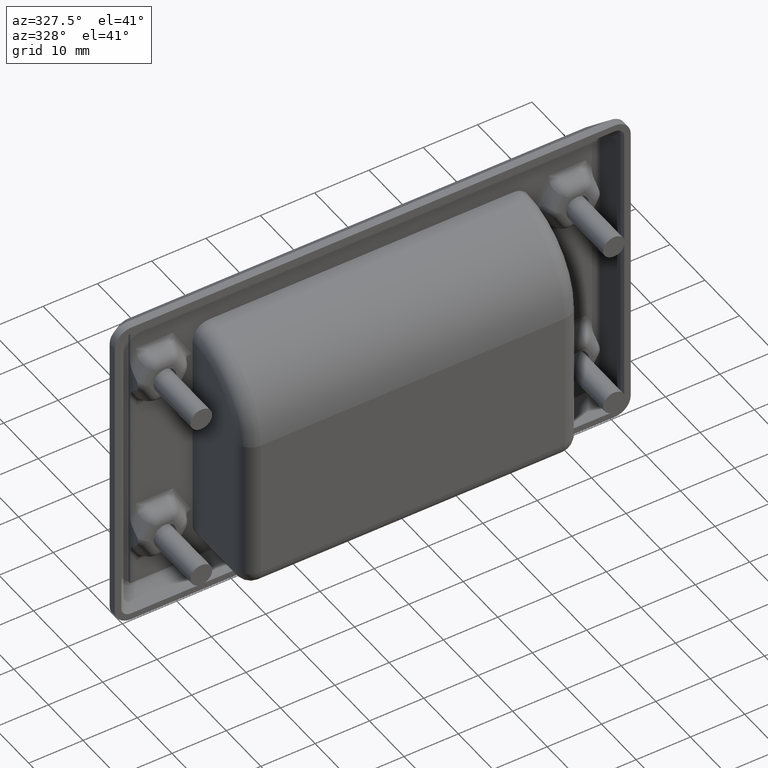
[diagram: clean part render]
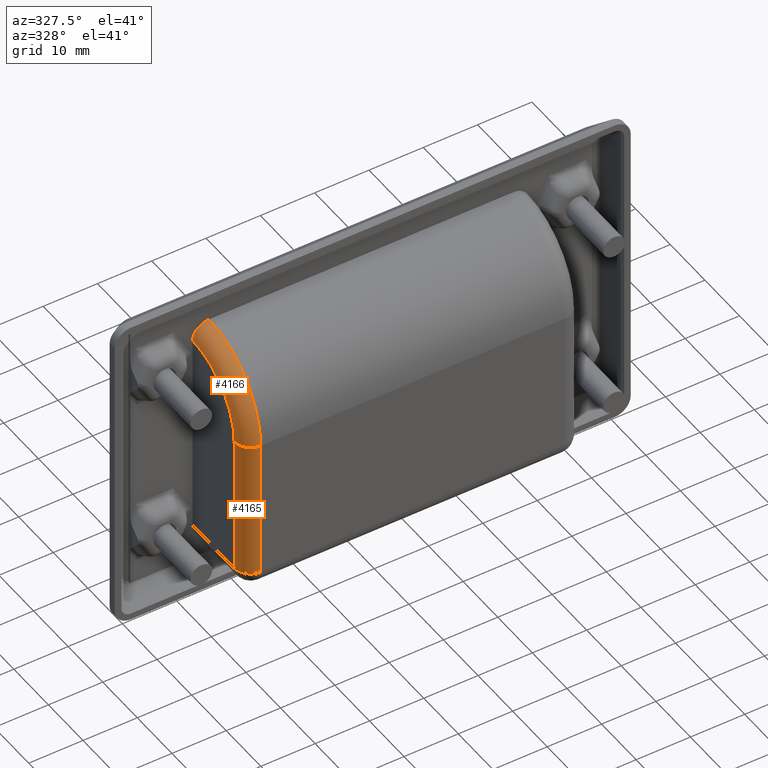
[diagram: same view with one multi-face feature highlighted, each face labeled with its STEP entity id]
A machine part, auxiliary view. The highlighted faces form ONE feature: a constant-radius fillet chain: 2 tangent blend faces with common blend radius 3 mm. The faces share edges in the B-rep.
Their STEP definitions:
[1] entity #4165 (Cylinder):
#487=LINE('',#8252,#802);
#488=LINE('',#8255,#803);
#802=VECTOR('',#5859,26.);
#803=VECTOR('',#5862,26.);
#1174=FACE_OUTER_BOUND('',#1464,.T.);
#1464=EDGE_LOOP('',(#3687,#3688,#3689,#3690));
#1652=CIRCLE('',#4632,3.);
#1653=CIRCLE('',#4633,3.);
#1997=VERTEX_POINT('',#8241);
#2000=VERTEX_POINT('',#8249);
#2001=VERTEX_POINT('',#8251);
#2002=VERTEX_POINT('',#8253);
#2578=EDGE_CURVE('',#1997,#2000,#1652,.T.);
#2579=EDGE_CURVE('',#2000,#2001,#487,.T.);
#2580=EDGE_CURVE('',#2001,#2002,#1653,.T.);
#2581=EDGE_CURVE('',#2002,#1997,#488,.T.);
#3687=ORIENTED_EDGE('',*,*,#2578,.T.);
#3688=ORIENTED_EDGE('',*,*,#2579,.T.);
#3689=ORIENTED_EDGE('',*,*,#2580,.T.);
#3690=ORIENTED_EDGE('',*,*,#2581,.T.);
#3911=CYLINDRICAL_SURFACE('',#4631,3.);
#4165=ADVANCED_FACE('',(#1174),#3911,.T.);
#4631=AXIS2_PLACEMENT_3D('',#8248,#5855,#5856);
#4632=AXIS2_PLACEMENT_3D('',#8250,#5857,#5858);
#4633=AXIS2_PLACEMENT_3D('',#8254,#5860,#5861);
#5855=DIRECTION('center_axis',(0.,1.,0.));
#5856=DIRECTION('ref_axis',(-0.707106781186549,0.,0.707106781186546));
#5857=DIRECTION('center_axis',(0.,1.,0.));
#5858=DIRECTION('ref_axis',(-1.,0.,0.));
#5859=DIRECTION('',(0.,1.,0.));
#5860=DIRECTION('center_axis',(0.,-1.,0.));
#5861=DIRECTION('ref_axis',(0.,0.,1.));
#5862=DIRECTION('',(0.,-1.,0.));
#8241=CARTESIAN_POINT('',(-31.,-19.,12.5));
#8248=CARTESIAN_POINT('Origin',(-28.,2.52403089106569,12.5));
#8249=CARTESIAN_POINT('',(-28.,-19.,15.5));
#8250=CARTESIAN_POINT('Origin',(-28.,-19.,12.5));
#8251=CARTESIAN_POINT('',(-28.,6.99999999999997,15.5));
#8252=CARTESIAN_POINT('',(-28.,2.52403089106569,15.5));
#8253=CARTESIAN_POINT('',(-31.,6.99999999999997,12.5));
#8254=CARTESIAN_POINT('Origin',(-28.,6.99999999999997,12.5));
#8255=CARTESIAN_POINT('',(-31.,2.52403089106569,12.5));
[2] entity #4166 (Torus):
#19=TOROIDAL_SURFACE('',#4634,12.,3.);
#1175=FACE_OUTER_BOUND('',#1465,.T.);
#1465=EDGE_LOOP('',(#3691,#3692,#3693,#3694));
#1653=CIRCLE('',#4633,3.);
#1654=CIRCLE('',#4635,3.);
#1655=CIRCLE('',#4636,12.);
#1656=CIRCLE('',#4637,15.);
#2001=VERTEX_POINT('',#8251);
#2002=VERTEX_POINT('',#8253);
#2003=VERTEX_POINT('',#8257);
#2004=VERTEX_POINT('',#8258);
#2580=EDGE_CURVE('',#2001,#2002,#1653,.T.);
#2582=EDGE_CURVE('',#2003,#2004,#1654,.F.);
#2583=EDGE_CURVE('',#2004,#2002,#1655,.T.);
#2584=EDGE_CURVE('',#2001,#2003,#1656,.T.);
#3691=ORIENTED_EDGE('',*,*,#2582,.T.);
#3692=ORIENTED_EDGE('',*,*,#2583,.T.);
#3693=ORIENTED_EDGE('',*,*,#2580,.F.);
#3694=ORIENTED_EDGE('',*,*,#2584,.T.);
#4166=ADVANCED_FACE('',(#1175),#19,.T.);
#4633=AXIS2_PLACEMENT_3D('',#8254,#5860,#5861);
#4634=AXIS2_PLACEMENT_3D('',#8256,#5863,#5864);
#4635=AXIS2_PLACEMENT_3D('',#8259,#5865,#5866);
#4636=AXIS2_PLACEMENT_3D('',#8260,#5867,#5868);
#4637=AXIS2_PLACEMENT_3D('',#8261,#5869,#5870);
#5860=DIRECTION('center_axis',(0.,-1.,0.));
#5861=DIRECTION('ref_axis',(0.,0.,1.));
#5863=DIRECTION('center_axis',(-1.,0.,0.));
#5864=DIRECTION('ref_axis',(0.,0.,1.));
#5865=DIRECTION('center_axis',(0.,1.84147568988307E-16,-1.));
#5866=DIRECTION('ref_axis',(0.,1.,1.84147568988307E-16));
#5867=DIRECTION('center_axis',(1.,0.,0.));
#5868=DIRECTION('ref_axis',(0.,0.707106781186547,0.707106781186548));
#5869=DIRECTION('center_axis',(-1.,0.,0.));
#5870=DIRECTION('ref_axis',(0.,0.707106781186547,0.707106781186548));
#8251=CARTESIAN_POINT('',(-28.,6.99999999999997,15.5));
#8253=CARTESIAN_POINT('',(-31.,6.99999999999997,12.5));
#8254=CARTESIAN_POINT('Origin',(-28.,6.99999999999997,12.5));
#8256=CARTESIAN_POINT('Origin',(-28.,6.99999999999998,0.500000000000003));
#8257=CARTESIAN_POINT('',(-28.,22.,0.500000000000006));
#8258=CARTESIAN_POINT('',(-31.,19.,0.500000000000005));
#8259=CARTESIAN_POINT('Origin',(-28.,19.,0.500000000000005));
#8260=CARTESIAN_POINT('Origin',(-31.,6.99999999999998,0.500000000000003));
#8261=CARTESIAN_POINT('Origin',(-28.,6.99999999999998,0.500000000000003));